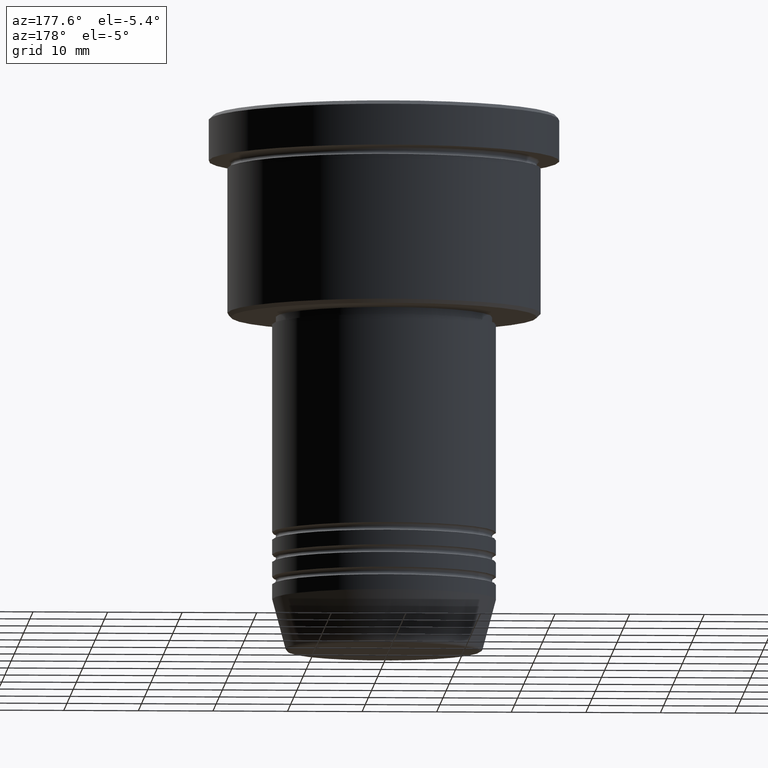
[diagram: clean part render]
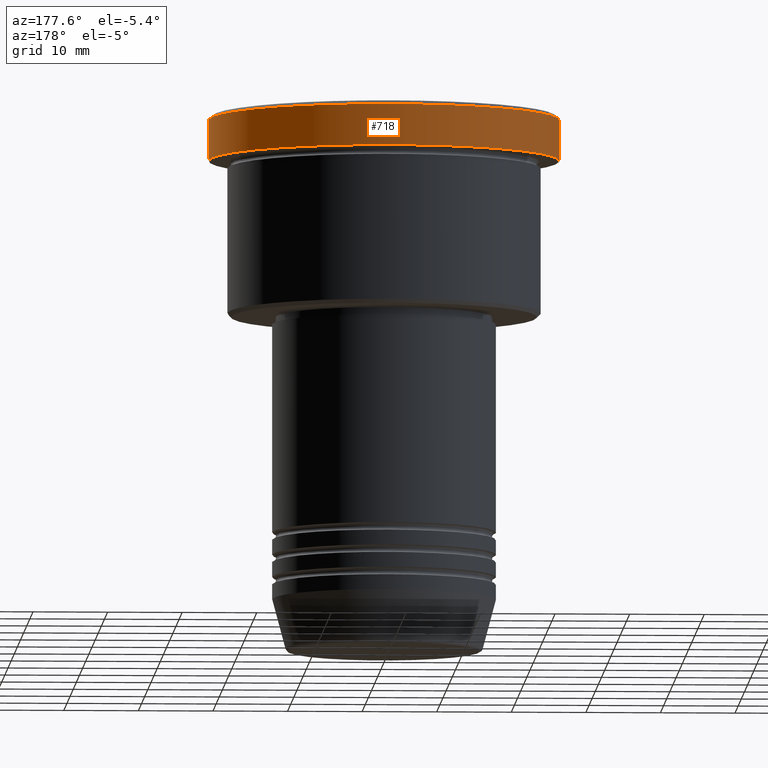
[diagram: same view with one face highlighted and labeled with its STEP entity id]
A machine part, auxiliary view. The second image highlights one B-rep face of the part: STEP entity #718.
In plain terms, the highlighted cylindrical surface (partial cylindrical patch) has radius 23.5 mm, axis along (-0, -0, 1).
Its self-contained STEP definition (entity closure, byte-faithful):
#14 = FACE_OUTER_BOUND ( 'NONE', #1129, .T. ) ;
#57 = ORIENTED_EDGE ( 'NONE', *, *, #739, .T. ) ;
#113 = CIRCLE ( 'NONE', #152, 23.50000000000000000 ) ;
#119 = ORIENTED_EDGE ( 'NONE', *, *, #776, .T. ) ;
#128 = LINE ( 'NONE', #508, #949 ) ;
#152 = AXIS2_PLACEMENT_3D ( 'NONE', #790, #319, #683 ) ;
#175 = CARTESIAN_POINT ( 'NONE',  ( 23.50000000000000000, 0.000000000000000000, 0.000000000000000000 ) ) ;
#244 = DIRECTION ( 'NONE',  ( 0.000000000000000000, 0.000000000000000000, -1.000000000000000000 ) ) ;
#255 = CARTESIAN_POINT ( 'NONE',  ( 23.50000000000000000, 0.000000000000000000, -0.5000000000000143219 ) ) ;
#260 = EDGE_CURVE ( 'NONE', #266, #950, #1177, .T. ) ;
#266 = VERTEX_POINT ( 'NONE', #796 ) ;
#309 = AXIS2_PLACEMENT_3D ( 'NONE', #865, #940, #697 ) ;
#319 = DIRECTION ( 'NONE',  ( -0.000000000000000000, -0.000000000000000000, 1.000000000000000000 ) ) ;
#327 = CIRCLE ( 'NONE', #491, 23.50000000000000000 ) ;
#346 = ORIENTED_EDGE ( 'NONE', *, *, #260, .F. ) ;
#417 = CARTESIAN_POINT ( 'NONE',  ( -23.50000000000000000, 2.877919977996280320E-15, -0.5000000000000143219 ) ) ;
#432 = DIRECTION ( 'NONE',  ( -0.000000000000000000, -0.000000000000000000, 1.000000000000000000 ) ) ;
#439 = DIRECTION ( 'NONE',  ( -0.000000000000000000, -0.000000000000000000, 1.000000000000000000 ) ) ;
#461 = VECTOR ( 'NONE', #439, 1000.000000000000000 ) ;
#488 = ORIENTED_EDGE ( 'NONE', *, *, #847, .T. ) ;
#491 = AXIS2_PLACEMENT_3D ( 'NONE', #870, #244, #701 ) ;
#497 = CYLINDRICAL_SURFACE ( 'NONE', #309, 23.50000000000000000 ) ;
#508 = CARTESIAN_POINT ( 'NONE',  ( -23.50000000000000000, 2.877919977996280320E-15, 0.000000000000000000 ) ) ;
#683 = DIRECTION ( 'NONE',  ( 1.000000000000000000, 0.000000000000000000, 0.000000000000000000 ) ) ;
#697 = DIRECTION ( 'NONE',  ( 1.000000000000000000, 0.000000000000000000, 0.000000000000000000 ) ) ;
#701 = DIRECTION ( 'NONE',  ( 1.000000000000000000, 0.000000000000000000, 0.000000000000000000 ) ) ;
#718 = ADVANCED_FACE ( 'NONE', ( #14 ), #497, .T. ) ;
#720 = VERTEX_POINT ( 'NONE', #1063 ) ;
#739 = EDGE_CURVE ( 'NONE', #266, #720, #113, .T. ) ;
#776 = EDGE_CURVE ( 'NONE', #813, #950, #327, .T. ) ;
#790 = CARTESIAN_POINT ( 'NONE',  ( 0.000000000000000000, 0.000000000000000000, -5.999999999999994671 ) ) ;
#796 = CARTESIAN_POINT ( 'NONE',  ( 23.50000000000000000, 0.000000000000000000, -5.999999999999994671 ) ) ;
#813 = VERTEX_POINT ( 'NONE', #417 ) ;
#847 = EDGE_CURVE ( 'NONE', #720, #813, #128, .T. ) ;
#865 = CARTESIAN_POINT ( 'NONE',  ( 0.000000000000000000, 0.000000000000000000, 0.000000000000000000 ) ) ;
#870 = CARTESIAN_POINT ( 'NONE',  ( 0.000000000000000000, 0.000000000000000000, -0.5000000000000143219 ) ) ;
#940 = DIRECTION ( 'NONE',  ( -0.000000000000000000, -0.000000000000000000, 1.000000000000000000 ) ) ;
#949 = VECTOR ( 'NONE', #432, 1000.000000000000000 ) ;
#950 = VERTEX_POINT ( 'NONE', #255 ) ;
#1063 = CARTESIAN_POINT ( 'NONE',  ( -23.50000000000000000, 2.877919977996280320E-15, -5.999999999999994671 ) ) ;
#1129 = EDGE_LOOP ( 'NONE', ( #57, #488, #119, #346 ) ) ;
#1177 = LINE ( 'NONE', #175, #461 ) ;